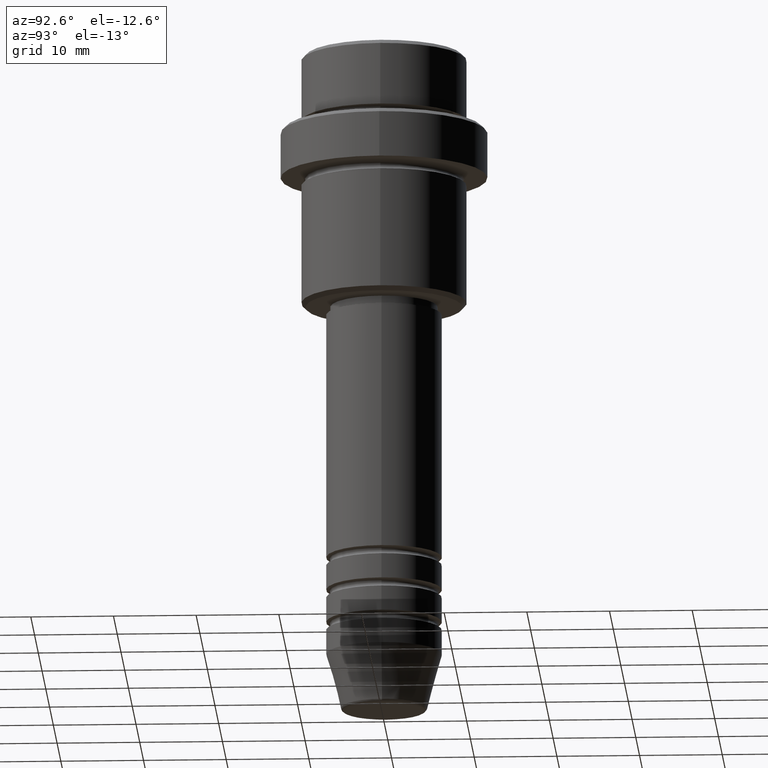
[diagram: clean part render]
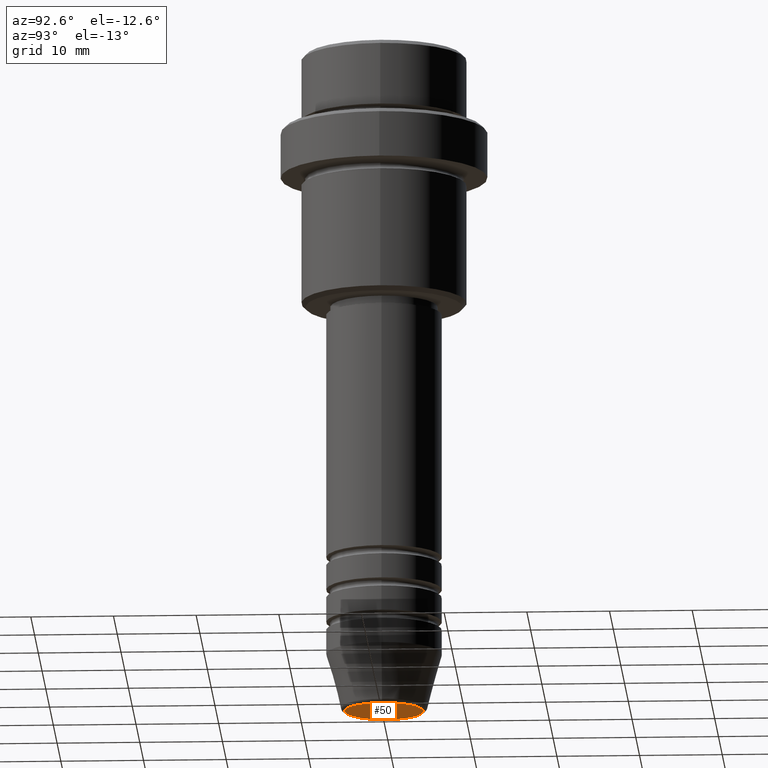
[diagram: same view with one face highlighted and labeled with its STEP entity id]
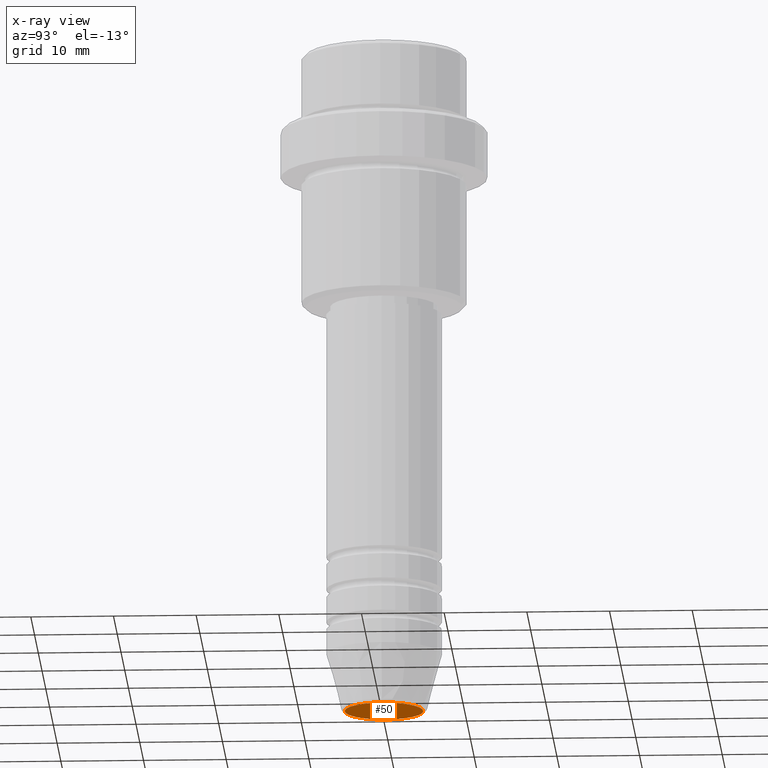
[diagram: x-ray of the same camera — body ghosted, the highlighted face saturated]
A machine part, auxiliary view. The second image highlights one B-rep face of the part: STEP entity #50.
The next image is the same camera in x-ray: the body ghosted, the highlighted face saturated — about 0% of this face is hidden behind the body in this view.
In plain terms, the highlighted planar face has unit normal (0, -0, 1).
Its self-contained STEP definition (entity closure, byte-faithful):
#50 = ADVANCED_FACE ( 'NONE', ( #975 ), #102, .F. ) ;
#102 = PLANE ( 'NONE',  #752 ) ;
#160 = CARTESIAN_POINT ( 'NONE',  ( 0.000000000000000000, 0.000000000000000000, -81.00000000000001421 ) ) ;
#287 = EDGE_CURVE ( 'NONE', #768, #720, #941, .T. ) ;
#297 = EDGE_LOOP ( 'NONE', ( #389, #933 ) ) ;
#303 = CARTESIAN_POINT ( 'NONE',  ( 4.740692158992653837, 0.000000000000000000, -81.00000000000001421 ) ) ;
#389 = ORIENTED_EDGE ( 'NONE', *, *, #718, .T. ) ;
#412 = CARTESIAN_POINT ( 'NONE',  ( 0.000000000000000000, 0.000000000000000000, -81.00000000000001421 ) ) ;
#446 = DIRECTION ( 'NONE',  ( 0.000000000000000000, -0.000000000000000000, 1.000000000000000000 ) ) ;
#528 = AXIS2_PLACEMENT_3D ( 'NONE', #412, #1298, #832 ) ;
#544 = DIRECTION ( 'NONE',  ( 1.000000000000000000, 0.000000000000000000, 0.000000000000000000 ) ) ;
#568 = AXIS2_PLACEMENT_3D ( 'NONE', #160, #1023, #867 ) ;
#583 = CARTESIAN_POINT ( 'NONE',  ( -4.740692158992653837, 6.101402971097974830E-16, -81.00000000000001421 ) ) ;
#718 = EDGE_CURVE ( 'NONE', #720, #768, #1417, .T. ) ;
#720 = VERTEX_POINT ( 'NONE', #303 ) ;
#752 = AXIS2_PLACEMENT_3D ( 'NONE', #965, #446, #544 ) ;
#768 = VERTEX_POINT ( 'NONE', #583 ) ;
#832 = DIRECTION ( 'NONE',  ( 1.000000000000000000, 0.000000000000000000, 0.000000000000000000 ) ) ;
#867 = DIRECTION ( 'NONE',  ( 1.000000000000000000, 0.000000000000000000, 0.000000000000000000 ) ) ;
#933 = ORIENTED_EDGE ( 'NONE', *, *, #287, .T. ) ;
#941 = CIRCLE ( 'NONE', #568, 4.740692158992653837 ) ;
#965 = CARTESIAN_POINT ( 'NONE',  ( 0.000000000000000000, 0.000000000000000000, -81.00000000000001421 ) ) ;
#975 = FACE_OUTER_BOUND ( 'NONE', #297, .T. ) ;
#1023 = DIRECTION ( 'NONE',  ( 0.000000000000000000, 0.000000000000000000, -1.000000000000000000 ) ) ;
#1298 = DIRECTION ( 'NONE',  ( 0.000000000000000000, 0.000000000000000000, -1.000000000000000000 ) ) ;
#1417 = CIRCLE ( 'NONE', #528, 4.740692158992653837 ) ;